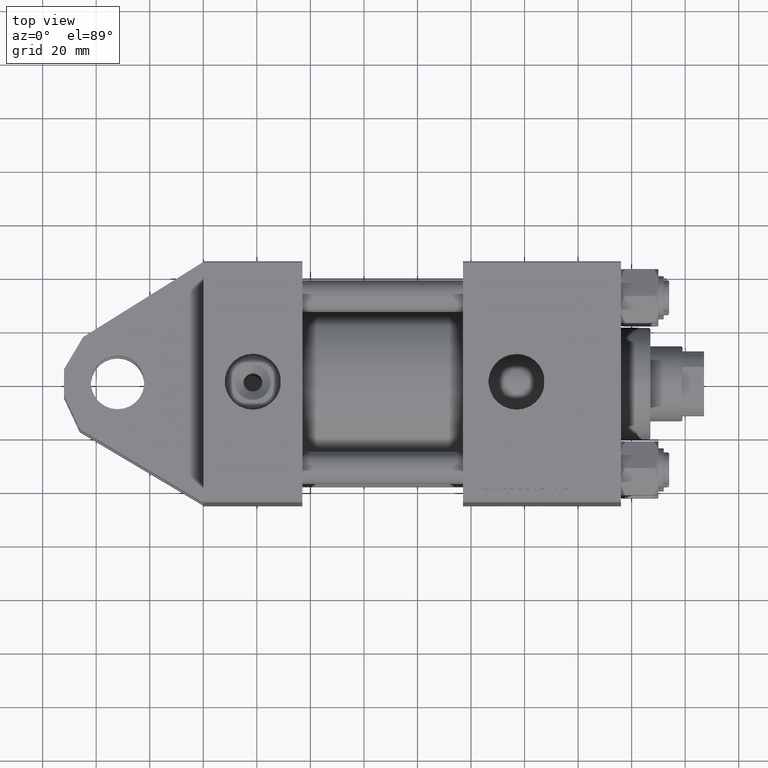
[diagram: clean part render]
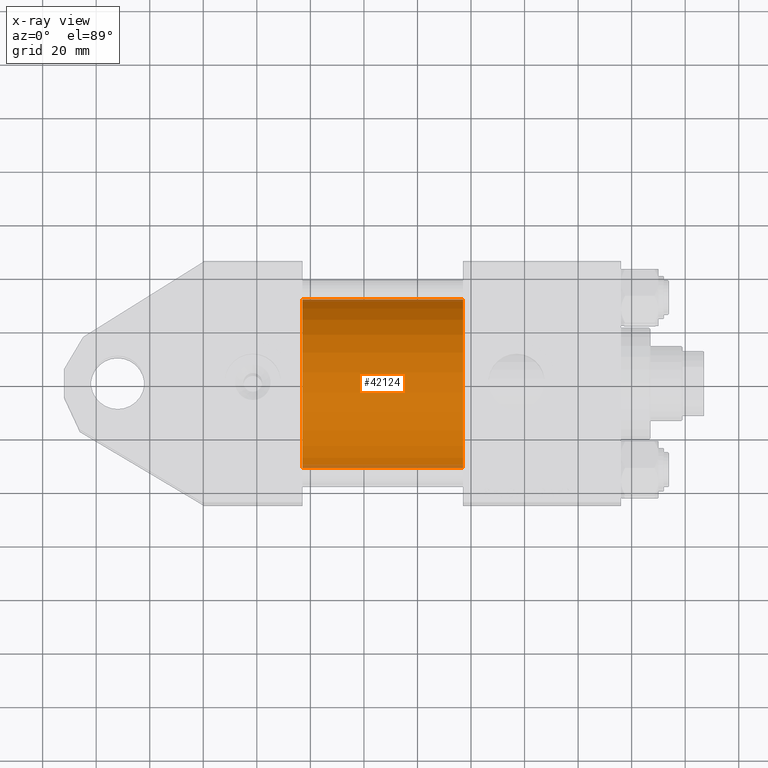
[diagram: x-ray — body ghosted, one internal face saturated and labeled with its STEP entity id]
A machine part, top view, then the same camera in x-ray: the body is ghosted and one INTERNAL B-rep face — a face not visible from any outside direction — is saturated and labeled: STEP entity #42124.
In plain terms, the highlighted cylindrical surface (partial cylindrical patch) has radius 31.5 mm, axis along (-1, -0, 0).
Its self-contained STEP definition (entity closure, byte-faithful):
#694 = DIRECTION ( 'NONE',  ( -1.000000000000000000, -0.000000000000000000, -0.000000000000000000 ) ) ;
#1135 = CARTESIAN_POINT ( 'NONE',  ( 97.00000000000000000, -3.469446951953614189E-15, 31.50000000000000000 ) ) ;
#3253 = EDGE_CURVE ( 'NONE', #37169, #11561, #50792, .T. ) ;
#3385 = CARTESIAN_POINT ( 'NONE',  ( 97.00000000000000000, -3.469446951953614189E-15, 0.000000000000000000 ) ) ;
#4131 = EDGE_CURVE ( 'NONE', #10513, #37169, #37032, .T. ) ;
#4368 = CARTESIAN_POINT ( 'NONE',  ( 97.00000000000000000, -3.469446951953614189E-15, 0.000000000000000000 ) ) ;
#6359 = CARTESIAN_POINT ( 'NONE',  ( 37.00000000000000000, -3.469446951953614189E-15, 0.000000000000000000 ) ) ;
#10050 = EDGE_CURVE ( 'NONE', #29573, #11561, #42649, .T. ) ;
#10513 = VERTEX_POINT ( 'NONE', #24699 ) ;
#11489 = DIRECTION ( 'NONE',  ( 1.000000000000000000, 0.000000000000000000, 0.000000000000000000 ) ) ;
#11561 = VERTEX_POINT ( 'NONE', #44215 ) ;
#13416 = ORIENTED_EDGE ( 'NONE', *, *, #31513, .T. ) ;
#17112 = DIRECTION ( 'NONE',  ( -1.000000000000000000, -0.000000000000000000, -0.000000000000000000 ) ) ;
#17601 = CARTESIAN_POINT ( 'NONE',  ( 97.00000000000000000, 3.881904653605483521E-16, -31.50000000000000000 ) ) ;
#19103 = DIRECTION ( 'NONE',  ( 0.000000000000000000, 0.000000000000000000, -1.000000000000000000 ) ) ;
#19190 = DIRECTION ( 'NONE',  ( 0.000000000000000000, 0.000000000000000000, -1.000000000000000000 ) ) ;
#19542 = VECTOR ( 'NONE', #47069, 1000.000000000000000 ) ;
#20064 = ORIENTED_EDGE ( 'NONE', *, *, #4131, .F. ) ;
#24139 = EDGE_LOOP ( 'NONE', ( #13416, #32317, #45004, #20064 ) ) ;
#24699 = CARTESIAN_POINT ( 'NONE',  ( 97.00000000000000000, -3.469446951953614189E-15, 31.50000000000000000 ) ) ;
#27420 = CARTESIAN_POINT ( 'NONE',  ( 97.00000000000000000, 3.881904653605483521E-16, -31.50000000000000000 ) ) ;
#29573 = VERTEX_POINT ( 'NONE', #17601 ) ;
#30189 = AXIS2_PLACEMENT_3D ( 'NONE', #3385, #11489, #19103 ) ;
#31513 = EDGE_CURVE ( 'NONE', #10513, #29573, #48564, .T. ) ;
#32317 = ORIENTED_EDGE ( 'NONE', *, *, #10050, .T. ) ;
#33256 = AXIS2_PLACEMENT_3D ( 'NONE', #4368, #694, #47608 ) ;
#36574 = FACE_OUTER_BOUND ( 'NONE', #24139, .T. ) ;
#37032 = LINE ( 'NONE', #1135, #44125 ) ;
#37169 = VERTEX_POINT ( 'NONE', #43737 ) ;
#42124 = ADVANCED_FACE ( 'NONE', ( #36574 ), #48366, .F. ) ;
#42649 = LINE ( 'NONE', #27420, #19542 ) ;
#43737 = CARTESIAN_POINT ( 'NONE',  ( 37.00000000000000000, -3.469446951953614189E-15, 31.50000000000000000 ) ) ;
#44125 = VECTOR ( 'NONE', #17112, 1000.000000000000000 ) ;
#44215 = CARTESIAN_POINT ( 'NONE',  ( 37.00000000000000000, 3.881904653605483521E-16, -31.50000000000000000 ) ) ;
#45004 = ORIENTED_EDGE ( 'NONE', *, *, #3253, .F. ) ;
#47069 = DIRECTION ( 'NONE',  ( -1.000000000000000000, -0.000000000000000000, -0.000000000000000000 ) ) ;
#47192 = DIRECTION ( 'NONE',  ( 1.000000000000000000, 0.000000000000000000, 0.000000000000000000 ) ) ;
#47459 = AXIS2_PLACEMENT_3D ( 'NONE', #6359, #47192, #19190 ) ;
#47608 = DIRECTION ( 'NONE',  ( 0.000000000000000000, 0.000000000000000000, 1.000000000000000000 ) ) ;
#48366 = CYLINDRICAL_SURFACE ( 'NONE', #33256, 31.50000000000000000 ) ;
#48564 = CIRCLE ( 'NONE', #30189, 31.50000000000000000 ) ;
#50792 = CIRCLE ( 'NONE', #47459, 31.50000000000000000 ) ;